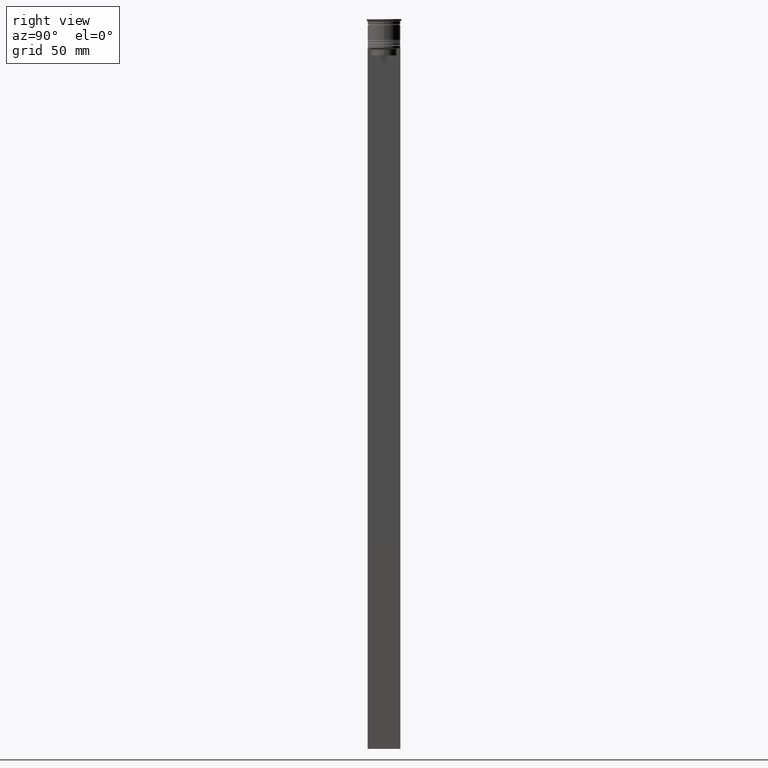
[diagram: clean part render]
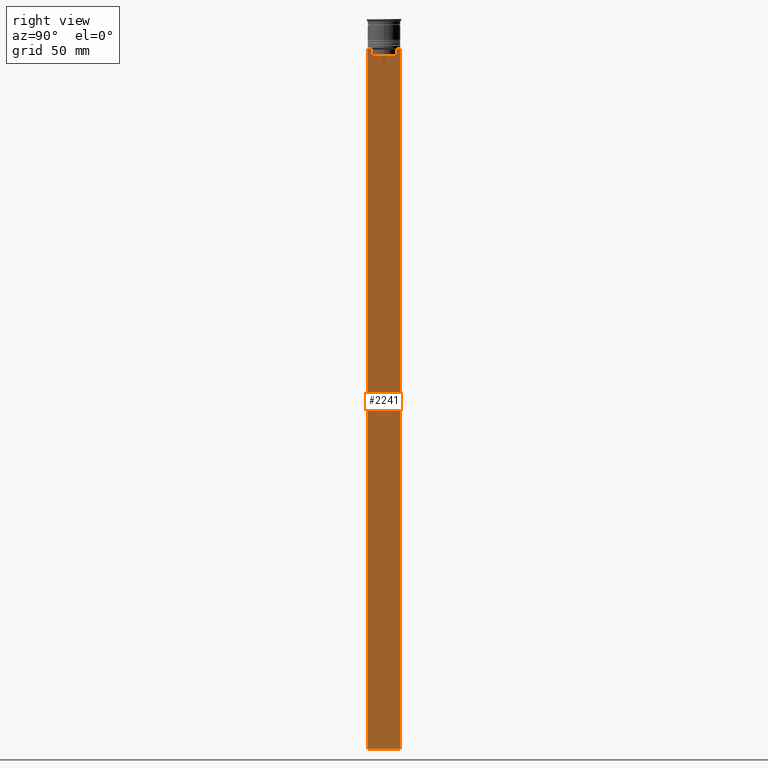
[diagram: same view with one face highlighted and labeled with its STEP entity id]
A machine part, right view. The second image highlights one B-rep face of the part: STEP entity #2241.
In plain terms, the highlighted planar face has unit normal (-1, 0, 0).
Its self-contained STEP definition (entity closure, byte-faithful):
#36 = EDGE_CURVE ( 'NONE', #1804, #1575, #2283, .T. ) ;
#96 = VECTOR ( 'NONE', #871, 1000.000000000000000 ) ;
#128 = VECTOR ( 'NONE', #1658, 1000.000000000000000 ) ;
#156 = VERTEX_POINT ( 'NONE', #1552 ) ;
#188 = VECTOR ( 'NONE', #735, 1000.000000000000000 ) ;
#203 = VERTEX_POINT ( 'NONE', #626 ) ;
#241 = CARTESIAN_POINT ( 'NONE',  ( 0.5000000000000000000, -5.711478856069293286, -12.66669469529570335 ) ) ;
#277 = EDGE_CURVE ( 'NONE', #526, #2487, #1619, .T. ) ;
#297 = VECTOR ( 'NONE', #2231, 1000.000000000000000 ) ;
#366 = ORIENTED_EDGE ( 'NONE', *, *, #2040, .T. ) ;
#420 = VECTOR ( 'NONE', #1280, 1000.000000000000000 ) ;
#434 = FACE_OUTER_BOUND ( 'NONE', #1539, .T. ) ;
#438 = CARTESIAN_POINT ( 'NONE',  ( 0.5000000000000000000, -5.544156999454441959, -12.83336396790503642 ) ) ;
#465 = CARTESIAN_POINT ( 'NONE',  ( 0.5000000000000000000, 6.881860213634102053, -12.50000000000000000 ) ) ;
#489 = VERTEX_POINT ( 'NONE', #1344 ) ;
#515 = CARTESIAN_POINT ( 'NONE',  ( 0.5000000000000000000, 5.544156989057553275, -12.83336397825725861 ) ) ;
#526 = VERTEX_POINT ( 'NONE', #1170 ) ;
#537 = VERTEX_POINT ( 'NONE', #1375 ) ;
#599 = VERTEX_POINT ( 'NONE', #1959 ) ;
#626 = CARTESIAN_POINT ( 'NONE',  ( 0.5000000000000000000, -6.999999999999997335, -312.5000000000000000 ) ) ;
#642 = DIRECTION ( 'NONE',  ( 0.000000000000000000, 0.000000000000000000, 1.000000000000000000 ) ) ;
#669 = VECTOR ( 'NONE', #2372, 1000.000000000000000 ) ;
#675 = LINE ( 'NONE', #1951, #815 ) ;
#687 = CARTESIAN_POINT ( 'NONE',  ( 0.5000000000000000000, 7.000000000000002665, 1.535668847618198329 ) ) ;
#700 = DIRECTION ( 'NONE',  ( 0.000000000000000000, 0.000000000000000000, -1.000000000000000000 ) ) ;
#735 = DIRECTION ( 'NONE',  ( 0.000000000000000000, -1.000000000000000000, 0.000000000000000000 ) ) ;
#777 = B_SPLINE_CURVE_WITH_KNOTS ( 'NONE', 3,
 ( #1978, #438, #241, #1033 ),
 .UNSPECIFIED., .F., .F.,
 ( 4, 4 ),
 ( 0.02539176325380714666, 0.02610162431828674801 ),
 .UNSPECIFIED. ) ;
#784 = CARTESIAN_POINT ( 'NONE',  ( 0.5000000000000000000, -6.999999999999997335, -12.50000000000000000 ) ) ;
#794 = VERTEX_POINT ( 'NONE', #1437 ) ;
#815 = VECTOR ( 'NONE', #2128, 1000.000000000000000 ) ;
#871 = DIRECTION ( 'NONE',  ( 0.000000000000000000, 0.000000000000000000, -1.000000000000000000 ) ) ;
#890 = LINE ( 'NONE', #687, #2101 ) ;
#920 = LINE ( 'NONE', #1828, #297 ) ;
#926 = CARTESIAN_POINT ( 'NONE',  ( 0.5000000000000000000, 5.878775382679629402, -12.50000000000000000 ) ) ;
#1001 = PLANE ( 'NONE',  #1516 ) ;
#1031 = CARTESIAN_POINT ( 'NONE',  ( 0.5000000000000000000, -6.881860213634102053, -12.50000000000000000 ) ) ;
#1033 = CARTESIAN_POINT ( 'NONE',  ( 0.5000000000000000000, -5.878775382679629402, -12.50000000000000000 ) ) ;
#1063 = CARTESIAN_POINT ( 'NONE',  ( 0.5000000000000000000, -6.999999999999997335, -12.50000000000000000 ) ) ;
#1086 = EDGE_CURVE ( 'NONE', #1860, #489, #1663, .T. ) ;
#1091 = EDGE_CURVE ( 'NONE', #203, #599, #920, .T. ) ;
#1159 = DIRECTION ( 'NONE',  ( 0.000000000000000000, -1.000000000000000000, 0.000000000000000000 ) ) ;
#1170 = CARTESIAN_POINT ( 'NONE',  ( 0.5000000000000000000, -5.376802023508029826, -15.50000000000000000 ) ) ;
#1262 = CARTESIAN_POINT ( 'NONE',  ( 0.5000000000000000000, 5.376802023508029826, -13.00000000000000178 ) ) ;
#1269 = CARTESIAN_POINT ( 'NONE',  ( 0.5000000000000000000, 5.376802023508029826, 0.000000000000000000 ) ) ;
#1276 = VECTOR ( 'NONE', #1159, 1000.000000000000000 ) ;
#1280 = DIRECTION ( 'NONE',  ( 0.000000000000000000, -1.000000000000000000, 0.000000000000000000 ) ) ;
#1326 = CARTESIAN_POINT ( 'NONE',  ( 0.5000000000000000000, -5.376802023508029826, -13.00000000000000178 ) ) ;
#1334 = LINE ( 'NONE', #1915, #669 ) ;
#1344 = CARTESIAN_POINT ( 'NONE',  ( 0.5000000000000000000, 5.878775382679629402, -12.50000000000000000 ) ) ;
#1375 = CARTESIAN_POINT ( 'NONE',  ( 0.5000000000000000000, -5.878775382679629402, -12.50000000000000000 ) ) ;
#1384 = CARTESIAN_POINT ( 'NONE',  ( 0.5000000000000000000, -6.999999999999997335, 1.535668847618198329 ) ) ;
#1388 = CARTESIAN_POINT ( 'NONE',  ( 0.5000000000000000000, 7.000000000000002665, -12.50000000000000000 ) ) ;
#1391 = ORIENTED_EDGE ( 'NONE', *, *, #2381, .T. ) ;
#1396 = DIRECTION ( 'NONE',  ( -1.000000000000000000, 0.000000000000000000, 0.000000000000000000 ) ) ;
#1424 = CARTESIAN_POINT ( 'NONE',  ( 0.5000000000000000000, -6.999999999999997335, -12.50000000000000000 ) ) ;
#1428 = VERTEX_POINT ( 'NONE', #1388 ) ;
#1437 = CARTESIAN_POINT ( 'NONE',  ( 0.5000000000000000000, 5.376802023508029826, -13.00000000000000178 ) ) ;
#1440 = EDGE_CURVE ( 'NONE', #2487, #537, #777, .T. ) ;
#1446 = ORIENTED_EDGE ( 'NONE', *, *, #1514, .F. ) ;
#1448 = ORIENTED_EDGE ( 'NONE', *, *, #36, .T. ) ;
#1514 = EDGE_CURVE ( 'NONE', #1428, #599, #890, .T. ) ;
#1516 = AXIS2_PLACEMENT_3D ( 'NONE', #1384, #1396, #642 ) ;
#1518 = CARTESIAN_POINT ( 'NONE',  ( 0.5000000000000000000, -6.999999999999997335, -12.50000000000000000 ) ) ;
#1539 = EDGE_LOOP ( 'NONE', ( #1630, #366, #1391, #1751, #2245, #1725, #2065, #1448, #2121, #2199, #1446, #2476 ) ) ;
#1551 = B_SPLINE_CURVE_WITH_KNOTS ( 'NONE', 3,
 ( #926, #1849, #515, #1262 ),
 .UNSPECIFIED., .F., .F.,
 ( 4, 4 ),
 ( 0.01003009312103698807, 0.01073859663834952557 ),
 .UNSPECIFIED. ) ;
#1552 = CARTESIAN_POINT ( 'NONE',  ( 0.5000000000000000000, 5.376802023508029826, -15.50000000000000000 ) ) ;
#1575 = VERTEX_POINT ( 'NONE', #1424 ) ;
#1619 = LINE ( 'NONE', #2399, #128 ) ;
#1630 = ORIENTED_EDGE ( 'NONE', *, *, #1086, .T. ) ;
#1658 = DIRECTION ( 'NONE',  ( -0.000000000000000000, -0.000000000000000000, 1.000000000000000000 ) ) ;
#1663 = LINE ( 'NONE', #2055, #420 ) ;
#1695 = VECTOR ( 'NONE', #1845, 1000.000000000000000 ) ;
#1725 = ORIENTED_EDGE ( 'NONE', *, *, #1440, .T. ) ;
#1751 = ORIENTED_EDGE ( 'NONE', *, *, #1892, .T. ) ;
#1802 = EDGE_CURVE ( 'NONE', #1575, #203, #1334, .T. ) ;
#1804 = VERTEX_POINT ( 'NONE', #1031 ) ;
#1828 = CARTESIAN_POINT ( 'NONE',  ( 0.5000000000000000000, -6.999999999999997335, -312.5000000000000000 ) ) ;
#1845 = DIRECTION ( 'NONE',  ( 0.000000000000000000, -1.000000000000000000, 0.000000000000000000 ) ) ;
#1849 = CARTESIAN_POINT ( 'NONE',  ( 0.5000000000000000000, 5.711478846560141598, -12.66669470477064685 ) ) ;
#1860 = VERTEX_POINT ( 'NONE', #465 ) ;
#1892 = EDGE_CURVE ( 'NONE', #156, #526, #675, .T. ) ;
#1915 = CARTESIAN_POINT ( 'NONE',  ( 0.5000000000000000000, -6.999999999999997335, 1.535668847618198329 ) ) ;
#1951 = CARTESIAN_POINT ( 'NONE',  ( 0.5000000000000000000, 5.400000000000003908, -15.50000000000000000 ) ) ;
#1959 = CARTESIAN_POINT ( 'NONE',  ( 0.5000000000000000000, 7.000000000000002665, -312.5000000000000000 ) ) ;
#1978 = CARTESIAN_POINT ( 'NONE',  ( 0.5000000000000000000, -5.376802023508029826, -13.00000000000000178 ) ) ;
#1989 = LINE ( 'NONE', #1269, #96 ) ;
#2040 = EDGE_CURVE ( 'NONE', #489, #794, #1551, .T. ) ;
#2055 = CARTESIAN_POINT ( 'NONE',  ( 0.5000000000000000000, -6.999999999999997335, -12.50000000000000000 ) ) ;
#2065 = ORIENTED_EDGE ( 'NONE', *, *, #2489, .T. ) ;
#2101 = VECTOR ( 'NONE', #700, 1000.000000000000000 ) ;
#2121 = ORIENTED_EDGE ( 'NONE', *, *, #1802, .T. ) ;
#2128 = DIRECTION ( 'NONE',  ( 0.000000000000000000, -1.000000000000000000, 0.000000000000000000 ) ) ;
#2199 = ORIENTED_EDGE ( 'NONE', *, *, #1091, .T. ) ;
#2219 = LINE ( 'NONE', #1063, #1695 ) ;
#2231 = DIRECTION ( 'NONE',  ( 0.000000000000000000, 1.000000000000000000, 0.000000000000000000 ) ) ;
#2241 = ADVANCED_FACE ( 'NONE', ( #434 ), #1001, .F. ) ;
#2245 = ORIENTED_EDGE ( 'NONE', *, *, #277, .T. ) ;
#2283 = LINE ( 'NONE', #1518, #1276 ) ;
#2372 = DIRECTION ( 'NONE',  ( 0.000000000000000000, 0.000000000000000000, -1.000000000000000000 ) ) ;
#2381 = EDGE_CURVE ( 'NONE', #794, #156, #1989, .T. ) ;
#2399 = CARTESIAN_POINT ( 'NONE',  ( 0.5000000000000000000, -5.376802023508029826, 0.000000000000000000 ) ) ;
#2413 = EDGE_CURVE ( 'NONE', #1428, #1860, #2219, .T. ) ;
#2447 = LINE ( 'NONE', #784, #188 ) ;
#2476 = ORIENTED_EDGE ( 'NONE', *, *, #2413, .T. ) ;
#2487 = VERTEX_POINT ( 'NONE', #1326 ) ;
#2489 = EDGE_CURVE ( 'NONE', #537, #1804, #2447, .T. ) ;